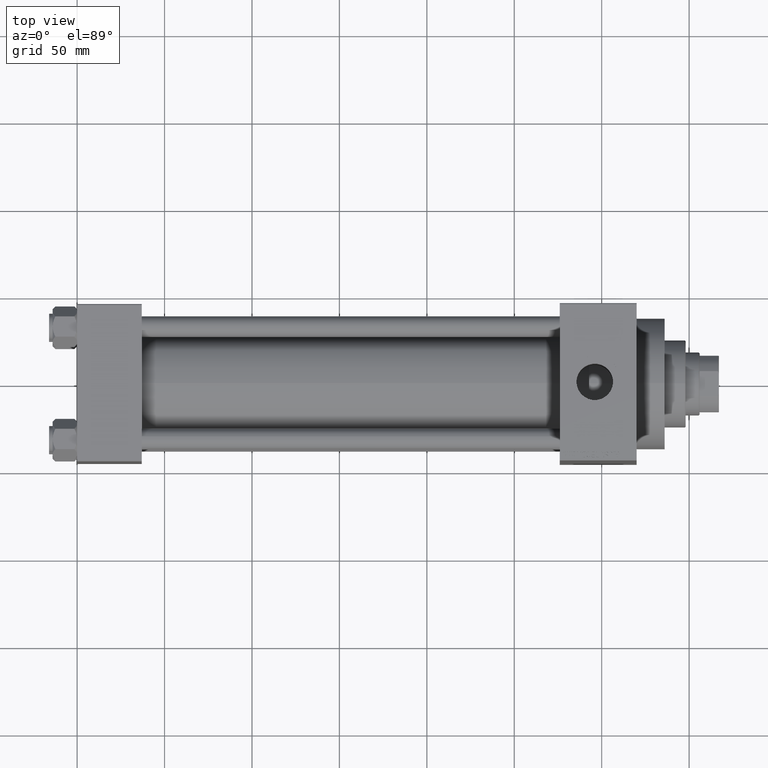
[diagram: clean part render]
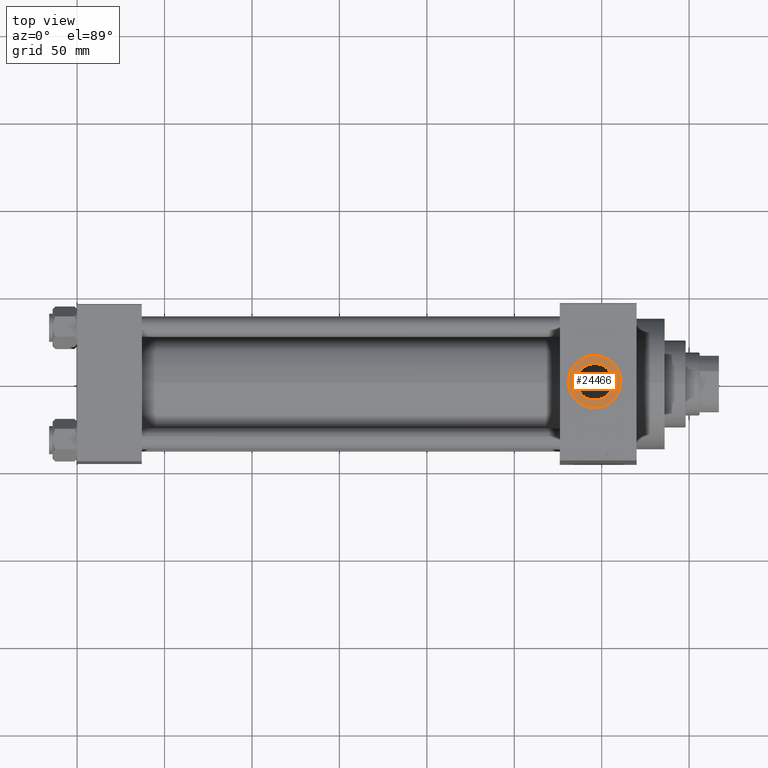
[diagram: same view with one face highlighted and labeled with its STEP entity id]
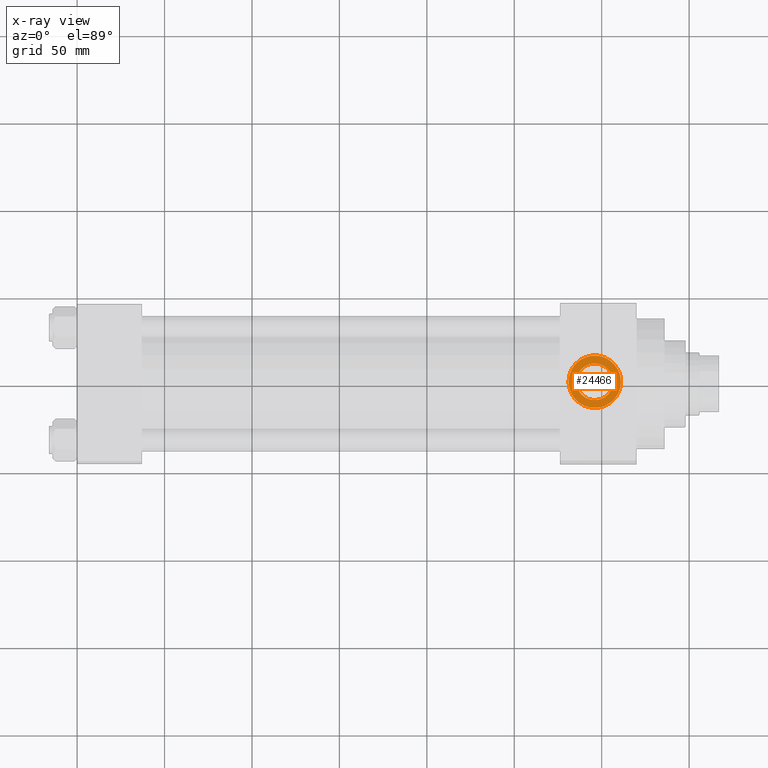
[diagram: x-ray of the same camera — body ghosted, the highlighted face saturated]
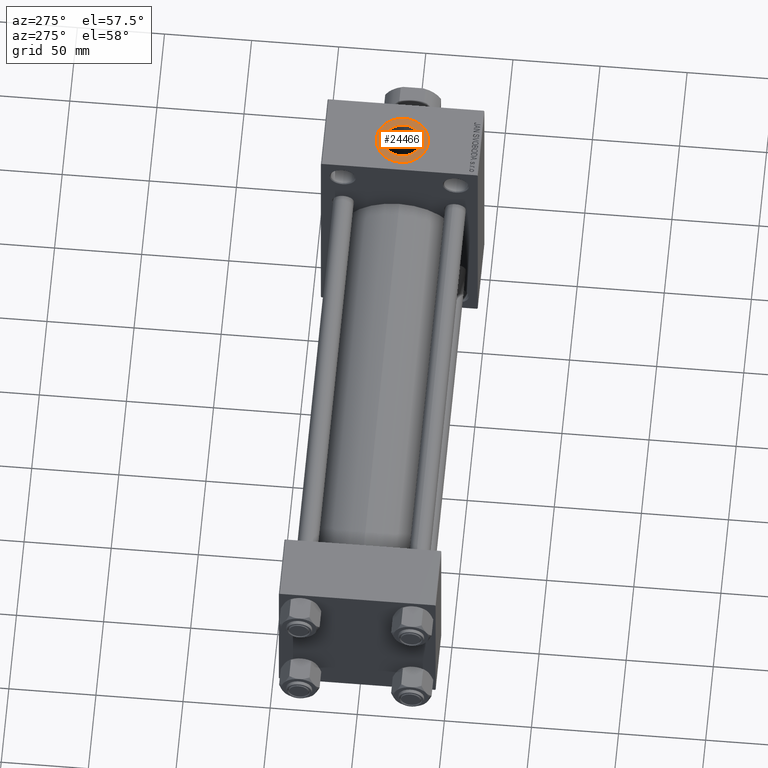
[diagram: same view with one face highlighted and labeled with its STEP entity id]
A machine part, top view. The second image highlights one B-rep face of the part: STEP entity #24466.
The next image is the same camera in x-ray: the body ghosted, the highlighted face saturated — about 0% of this face is hidden behind the body in this view.
A second angle (auxiliary view) of the same face is appended — the face is thin or edge-on in the first view.
In plain terms, the highlighted planar face has unit normal (0, 0, 1).
Its self-contained STEP definition (entity closure, byte-faithful):
#278 = EDGE_LOOP ( 'NONE', ( #17210, #21452 ) ) ;
#298 = VERTEX_POINT ( 'NONE', #9615 ) ;
#406 = DIRECTION ( 'NONE',  ( 1.000000000000000000, 0.000000000000000000, 0.000000000000000000 ) ) ;
#1437 = CARTESIAN_POINT ( 'NONE',  ( 296.0000000000000000, -1.094803260394251466E-14, 70.79999999999996874 ) ) ;
#2064 = DIRECTION ( 'NONE',  ( 1.000000000000000000, 0.000000000000000000, 0.000000000000000000 ) ) ;
#2305 = CARTESIAN_POINT ( 'NONE',  ( 296.0000000000000000, -1.094803260394251466E-14, 70.79999999999996874 ) ) ;
#3494 = CIRCLE ( 'NONE', #4965, 15.00000000000001421 ) ;
#4276 = DIRECTION ( 'NONE',  ( 0.000000000000000000, 0.000000000000000000, 1.000000000000000000 ) ) ;
#4965 = AXIS2_PLACEMENT_3D ( 'NONE', #2305, #9915, #2064 ) ;
#5189 = DIRECTION ( 'NONE',  ( 1.000000000000000000, 0.000000000000000000, 0.000000000000000000 ) ) ;
#5256 = VERTEX_POINT ( 'NONE', #26207 ) ;
#8746 = CARTESIAN_POINT ( 'NONE',  ( 311.0000000000000000, -1.094803260394251466E-14, 70.79999999999996874 ) ) ;
#9008 = FACE_OUTER_BOUND ( 'NONE', #37738, .T. ) ;
#9615 = CARTESIAN_POINT ( 'NONE',  ( 306.4799999999999613, -9.664602758436089169E-15, 70.79999999999996874 ) ) ;
#9915 = DIRECTION ( 'NONE',  ( 0.000000000000000000, 0.000000000000000000, 1.000000000000000000 ) ) ;
#9933 = CARTESIAN_POINT ( 'NONE',  ( 296.0000000000000000, -1.094803260394251466E-14, 70.79999999999996874 ) ) ;
#10814 = AXIS2_PLACEMENT_3D ( 'NONE', #44613, #4276, #5189 ) ;
#11216 = DIRECTION ( 'NONE',  ( 1.000000000000000000, 0.000000000000000000, 0.000000000000000000 ) ) ;
#12833 = DIRECTION ( 'NONE',  ( 0.000000000000000000, 0.000000000000000000, 1.000000000000000000 ) ) ;
#13107 = EDGE_CURVE ( 'NONE', #298, #5256, #20545, .T. ) ;
#14736 = VERTEX_POINT ( 'NONE', #8746 ) ;
#17210 = ORIENTED_EDGE ( 'NONE', *, *, #17251, .T. ) ;
#17251 = EDGE_CURVE ( 'NONE', #5256, #298, #40536, .T. ) ;
#17658 = EDGE_CURVE ( 'NONE', #14736, #26124, #24509, .T. ) ;
#20545 = CIRCLE ( 'NONE', #29743, 10.47999999999998977 ) ;
#21452 = ORIENTED_EDGE ( 'NONE', *, *, #13107, .T. ) ;
#24466 = ADVANCED_FACE ( 'NONE', ( #27158, #9008 ), #38129, .T. ) ;
#24509 = CIRCLE ( 'NONE', #10814, 15.00000000000001421 ) ;
#26124 = VERTEX_POINT ( 'NONE', #42941 ) ;
#26207 = CARTESIAN_POINT ( 'NONE',  ( 285.5199999999999818, -1.094803260394251466E-14, 70.79999999999996874 ) ) ;
#27158 = FACE_BOUND ( 'NONE', #278, .T. ) ;
#28341 = EDGE_CURVE ( 'NONE', #26124, #14736, #3494, .T. ) ;
#29743 = AXIS2_PLACEMENT_3D ( 'NONE', #9933, #39044, #406 ) ;
#29877 = AXIS2_PLACEMENT_3D ( 'NONE', #1437, #36990, #11216 ) ;
#32103 = ORIENTED_EDGE ( 'NONE', *, *, #17658, .T. ) ;
#34547 = CARTESIAN_POINT ( 'NONE',  ( 296.0000000000000000, -1.094803260394251466E-14, 70.79999999999996874 ) ) ;
#36990 = DIRECTION ( 'NONE',  ( -0.000000000000000000, -0.000000000000000000, -1.000000000000000000 ) ) ;
#37738 = EDGE_LOOP ( 'NONE', ( #32103, #46687 ) ) ;
#38129 = PLANE ( 'NONE',  #41519 ) ;
#39044 = DIRECTION ( 'NONE',  ( -0.000000000000000000, -0.000000000000000000, -1.000000000000000000 ) ) ;
#40536 = CIRCLE ( 'NONE', #29877, 10.47999999999998977 ) ;
#41479 = DIRECTION ( 'NONE',  ( 1.000000000000000000, 0.000000000000000000, -0.000000000000000000 ) ) ;
#41519 = AXIS2_PLACEMENT_3D ( 'NONE', #34547, #12833, #41479 ) ;
#42941 = CARTESIAN_POINT ( 'NONE',  ( 281.0000000000000000, -9.111062405221479547E-15, 70.79999999999996874 ) ) ;
#44613 = CARTESIAN_POINT ( 'NONE',  ( 296.0000000000000000, -1.094803260394251466E-14, 70.79999999999996874 ) ) ;
#46687 = ORIENTED_EDGE ( 'NONE', *, *, #28341, .T. ) ;